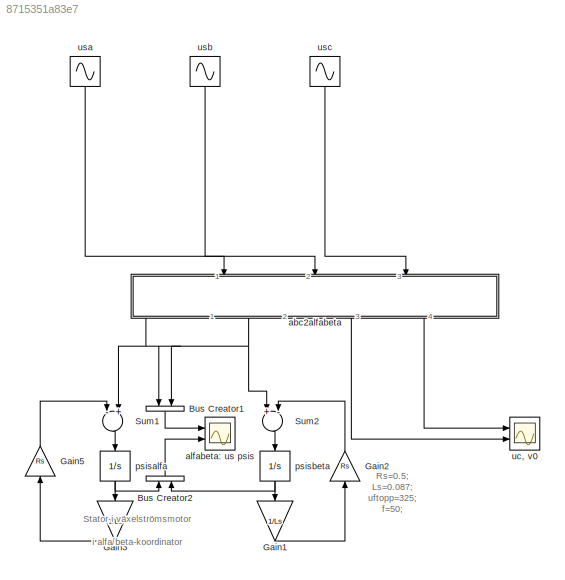
MODEL slx_8715351a83e7
KIND model
CONFIG AbsTol = auto
CONFIG EnableMultiTasking = on
CONFIG FixedStep = auto
CONFIG MaxStep = auto
CONFIG MinStep = auto
CONFIG RelTol = 1e-6
CONFIG SampleTimeConstraint = Unconstrained
CONFIG Solver = ode45
CONFIG SolverName = ode45
CONFIG StartTime = 0.0
CONFIG StopTime = 0.05
BLOCK [BusCreator] Bus Creator1
  DisplayOption = bar
  InheritFromInputs = on
  Inputs = 2
  Ports = [2, 1]
BLOCK [BusCreator] Bus Creator2
  DisplayOption = bar
  InheritFromInputs = on
  Inputs = 2
  Ports = [2, 1]
BLOCK [Gain] Gain1
  Gain = 1/Ls
BLOCK [Gain] Gain2
  Gain = Rs
BLOCK [Gain] Gain3
  Gain = 1/Ls
BLOCK [Gain] Gain5
  Gain = Rs
BLOCK [Sum] Sum1
  InputSameDT = off
  Inputs = -+
  OutDataTypeStr = Inherit: Inherit via internal rule
  Ports = [2, 1]
BLOCK [Sum] Sum2
  InputSameDT = off
  Inputs = +-
  OutDataTypeStr = Inherit: Inherit via internal rule
  Ports = [2, 1]
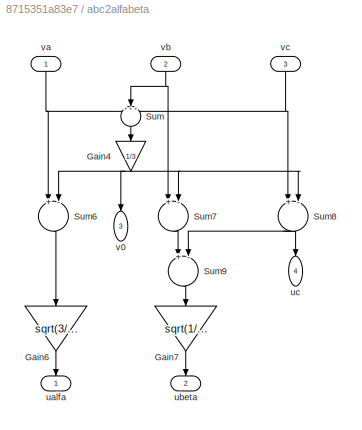
BLOCK [SubSystem] abc2alfabeta
  Ports = [3, 4]
  RequestExecContextInheritance = off
  Variant = off
BLOCK [Gain] abc2alfabeta/Gain4
  Gain = 1/3
BLOCK [Gain] abc2alfabeta/Gain6
  Gain = sqrt(3/2)
BLOCK [Gain] abc2alfabeta/Gain7
  Gain = sqrt(1/2)
BLOCK [Sum] abc2alfabeta/Sum
  IconShape = round
  InputSameDT = off
  Inputs = +++
  OutDataTypeStr = Inherit: Inherit via internal rule
  Ports = [3, 1]
  SaturateOnIntegerOverflow = off
BLOCK [Sum] abc2alfabeta/Sum6
  Inputs = +-
  Ports = [2, 1]
BLOCK [Sum] abc2alfabeta/Sum7
  Inputs = +-
  Ports = [2, 1]
BLOCK [Sum] abc2alfabeta/Sum8
  Inputs = +-
  Ports = [2, 1]
BLOCK [Sum] abc2alfabeta/Sum9
  Inputs = +-
  Ports = [2, 1]
BLOCK [Outport] abc2alfabeta/ualfa
  IconDisplay = Port number
BLOCK [Outport] abc2alfabeta/ubeta
  IconDisplay = Port number
  Port = 2
BLOCK [Outport] abc2alfabeta/uc
  IconDisplay = Port number
  Port = 4
BLOCK [Outport] abc2alfabeta/v0
  IconDisplay = Port number
  Port = 3
BLOCK [Inport] abc2alfabeta/va
  IconDisplay = Port number
BLOCK [Inport] abc2alfabeta/vb
  IconDisplay = Port number
  Port = 2
BLOCK [Inport] abc2alfabeta/vc
  IconDisplay = Port number
  Port = 3
BLOCK [Scope] alfabeta: us psis
  NumInputPorts = 2
  Ports = [2]
  ScopeSpecificationString = C++SS(StrPVP('Location','[66, 461, 532, 906]'),StrPVP('Open','off'),MxPVP('AxesTitles',53,'struct(''axes1'',''%<SignalLabel>'',''axes2'',''%<SignalLabel>'')'),MxPVP('ScopeGraphics',56,'struct(''FigureColor'',''[0.5 0.5 0.5]'',''AxesColor'',''[0 0 0]'',''AxesTickColor'',''[1 1 1]'',''LineColors'',''[1 1 0;1 0 1;0 1 1;1 0 0;0 1 0;0 0 1]'',''LineStyles'',''-|-|-|-|-|-'',''LineWidths'',''[0.5 0.5 0.5 ...<+406ch>
BLOCK [Integrator] psisalfa
  InitialCondition = -1.24
  Ports = [1, 1]
BLOCK [Integrator] psisbeta
  Ports = [1, 1]
BLOCK [Scope] uc, v0
  NumInputPorts = 2
  Ports = [2]
  ScopeSpecificationString = C++SS(StrPVP('Location','[49, 58, 1269, 297]'),StrPVP('Open','off'),MxPVP('AxesTitles',53,'struct(''axes1'',''%<SignalLabel>'',''axes2'',''%<SignalLabel>'')'),MxPVP('ScopeGraphics',56,'struct(''FigureColor'',''[0.5 0.5 0.5]'',''AxesColor'',''[0 0 0]'',''AxesTickColor'',''[1 1 1]'',''LineColors'',''[1 1 0;1 0 1;0 1 1;1 0 0;0 1 0;0 0 1]'',''LineStyles'',''-|-|-|-|-|-'',''LineWidths'',''[0.5 0.5 0.5 ...<+347ch>
BLOCK [Sin] usa
  Amplitude = uftopp
  Frequency = 2*pi*f
  Ports = [0, 1]
  SampleTime = 0
BLOCK [Sin] usb
  Amplitude = uftopp
  Frequency = 2*pi*f
  Phase = -2*pi/3
  Ports = [0, 1]
  SampleTime = 0
BLOCK [Sin] usc
  Amplitude = uftopp
  Frequency = 2*pi*f
  Phase = -4*pi/3
  Ports = [0, 1]
  SampleTime = 0
ANNOTATION (root): Rs=0.5; Ls=0.087; uftopp=325; f=50;
ANNOTATION (root): Stator i växelströmsmotor i alfa/beta-koordinator
LINE Bus Creator1:1 -> alfabeta: us psis:1
LINE Bus Creator2:1 -> alfabeta: us psis:2
LINE Gain1:1 -> Gain2:1
LINE Gain2:1 -> Sum2:2
LINE Gain3:1 -> Gain5:1
LINE Gain5:1 -> Sum1:1
LINE Sum1:1 -> psisalfa:1
LINE Sum2:1 -> psisbeta:1
NET abc2alfabeta/Gain4:1 -> abc2alfabeta/Sum6:2, abc2alfabeta/Sum7:2, abc2alfabeta/Sum8:2, abc2alfabeta/v0:1
LINE abc2alfabeta/Gain6:1 -> abc2alfabeta/ualfa:1
LINE abc2alfabeta/Gain7:1 -> abc2alfabeta/ubeta:1
LINE abc2alfabeta/Sum6:1 -> abc2alfabeta/Gain6:1
LINE abc2alfabeta/Sum7:1 -> abc2alfabeta/Sum9:1
NET abc2alfabeta/Sum8:1 -> abc2alfabeta/Sum9:2, abc2alfabeta/uc:1
LINE abc2alfabeta/Sum9:1 -> abc2alfabeta/Gain7:1
LINE abc2alfabeta/Sum:1 -> abc2alfabeta/Gain4:1
NET abc2alfabeta/va:1 -> abc2alfabeta/Sum6:1, abc2alfabeta/Sum:1
NET abc2alfabeta/vb:1 -> abc2alfabeta/Sum7:1, abc2alfabeta/Sum:2
NET abc2alfabeta/vc:1 -> abc2alfabeta/Sum8:1, abc2alfabeta/Sum:3
NET abc2alfabeta:1 -> Bus Creator1:1, Sum1:2
NET abc2alfabeta:2 -> Bus Creator1:2, Sum2:1
LINE abc2alfabeta:3 -> uc, v0:2
LINE abc2alfabeta:4 -> uc, v0:1
NET psisalfa:1 -> Bus Creator2:1, Gain3:1
NET psisbeta:1 -> Bus Creator2:2, Gain1:1
LINE usa:1 -> abc2alfabeta:1
LINE usb:1 -> abc2alfabeta:2
LINE usc:1 -> abc2alfabeta:3
note: NET lines group one-source signal fan-out (src -> all destinations, sorted); 1:1 wires keep LINE
